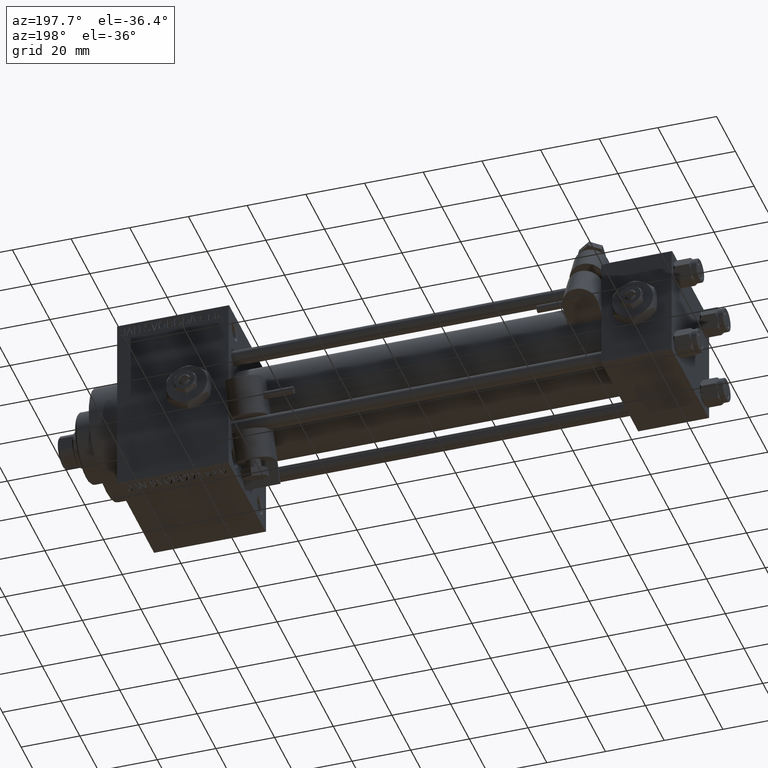
[diagram: clean part render]
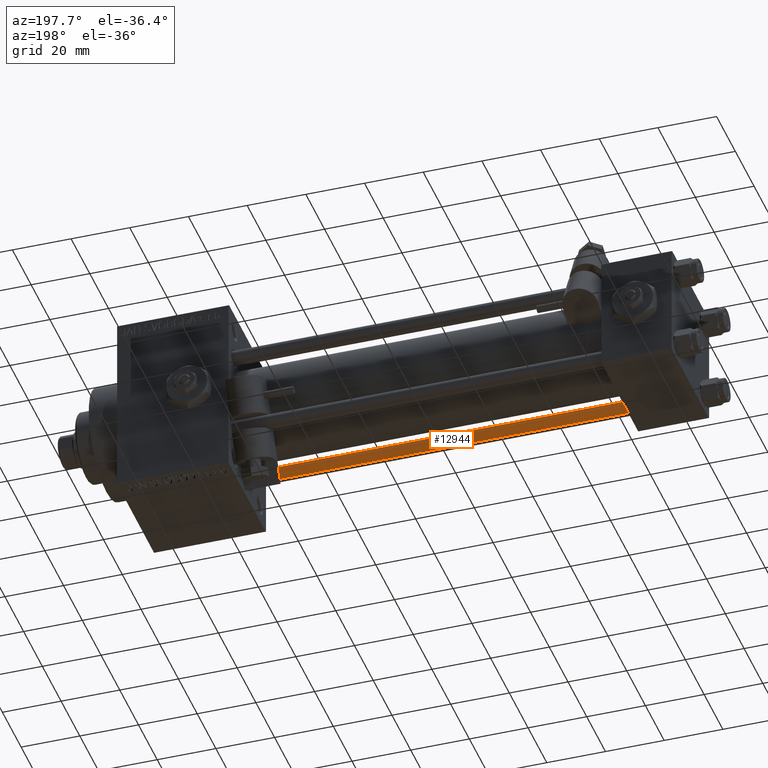
[diagram: same view with one face highlighted and labeled with its STEP entity id]
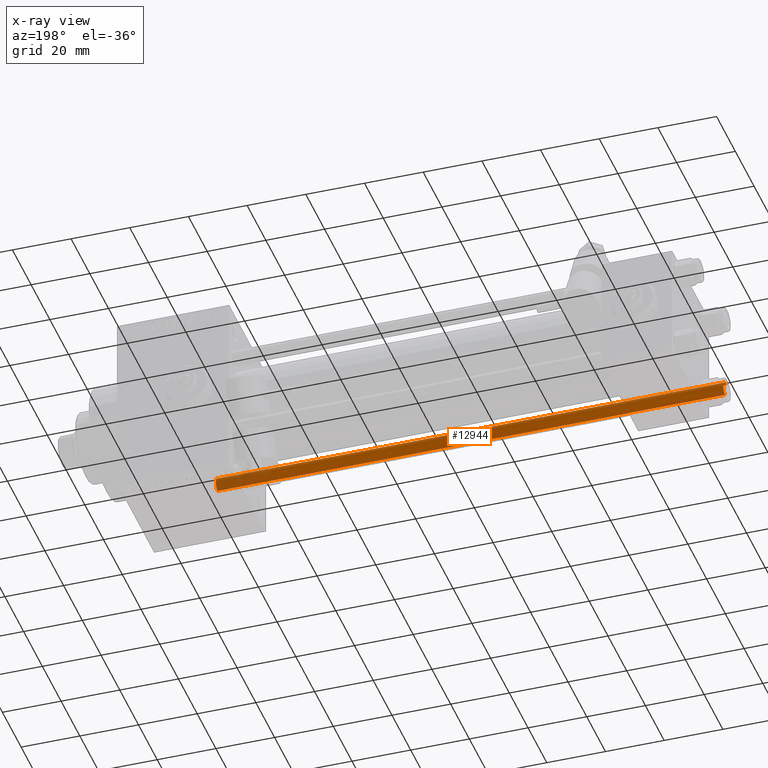
[diagram: x-ray of the same camera — body ghosted, the highlighted face saturated]
A machine part, auxiliary view. The second image highlights one B-rep face of the part: STEP entity #12944.
The next image is the same camera in x-ray: the body ghosted, the highlighted face saturated — about 8% of this face is hidden behind the body in this view.
In plain terms, the highlighted cylindrical surface (edge-blend (fillet) strip) has radius 2.5 mm, axis along (-1, 0, 0).
Its self-contained STEP definition (entity closure, byte-faithful):
#1652 = ORIENTED_EDGE ( 'NONE', *, *, #25671, .T. ) ;
#3290 = EDGE_CURVE ( 'NONE', #16460, #25687, #38782, .T. ) ;
#4102 = CARTESIAN_POINT ( 'NONE',  ( 2.500000000000000000, 3.061616997868383141E-16, 173.5000000000000000 ) ) ;
#4316 = ORIENTED_EDGE ( 'NONE', *, *, #27891, .F. ) ;
#4434 = DIRECTION ( 'NONE',  ( -1.000000000000000000, 0.000000000000000000, 0.000000000000000000 ) ) ;
#6632 = AXIS2_PLACEMENT_3D ( 'NONE', #9493, #24949, #4434 ) ;
#8422 = CARTESIAN_POINT ( 'NONE',  ( 2.500000000000000000, 3.061616997868383141E-16, 0.5000000000000281997 ) ) ;
#8497 = FACE_OUTER_BOUND ( 'NONE', #13917, .T. ) ;
#9493 = CARTESIAN_POINT ( 'NONE',  ( 0.000000000000000000, 0.000000000000000000, 174.0000000000000000 ) ) ;
#10260 = DIRECTION ( 'NONE',  ( 1.000000000000000000, 0.000000000000000000, 0.000000000000000000 ) ) ;
#10900 = VERTEX_POINT ( 'NONE', #39251 ) ;
#11353 = EDGE_CURVE ( 'NONE', #12329, #10900, #34928, .T. ) ;
#12221 = CARTESIAN_POINT ( 'NONE',  ( -2.500000000000000000, 0.000000000000000000, 174.0000000000000000 ) ) ;
#12329 = VERTEX_POINT ( 'NONE', #4102 ) ;
#12944 = ADVANCED_FACE ( 'NONE', ( #8497 ), #24196, .T. ) ;
#13917 = EDGE_LOOP ( 'NONE', ( #4316, #36315, #1652, #41218 ) ) ;
#14058 = DIRECTION ( 'NONE',  ( 0.000000000000000000, 0.000000000000000000, -1.000000000000000000 ) ) ;
#15500 = DIRECTION ( 'NONE',  ( -0.000000000000000000, -0.000000000000000000, 1.000000000000000000 ) ) ;
#16014 = LINE ( 'NONE', #12221, #32861 ) ;
#16460 = VERTEX_POINT ( 'NONE', #48323 ) ;
#16898 = AXIS2_PLACEMENT_3D ( 'NONE', #45695, #15500, #30483 ) ;
#24196 = CYLINDRICAL_SURFACE ( 'NONE', #6632, 2.500000000000000000 ) ;
#24949 = DIRECTION ( 'NONE',  ( -0.000000000000000000, -0.000000000000000000, -1.000000000000000000 ) ) ;
#25671 = EDGE_CURVE ( 'NONE', #10900, #16460, #16014, .T. ) ;
#25687 = VERTEX_POINT ( 'NONE', #8422 ) ;
#25783 = LINE ( 'NONE', #30107, #29676 ) ;
#27679 = DIRECTION ( 'NONE',  ( -0.000000000000000000, -0.000000000000000000, -1.000000000000000000 ) ) ;
#27891 = EDGE_CURVE ( 'NONE', #12329, #25687, #25783, .T. ) ;
#29676 = VECTOR ( 'NONE', #33647, 1000.000000000000000 ) ;
#30107 = CARTESIAN_POINT ( 'NONE',  ( 2.500000000000000000, 3.061616997868383141E-16, 174.0000000000000000 ) ) ;
#30483 = DIRECTION ( 'NONE',  ( 1.000000000000000000, 0.000000000000000000, 0.000000000000000000 ) ) ;
#32861 = VECTOR ( 'NONE', #27679, 1000.000000000000000 ) ;
#33647 = DIRECTION ( 'NONE',  ( -0.000000000000000000, -0.000000000000000000, -1.000000000000000000 ) ) ;
#34928 = CIRCLE ( 'NONE', #40692, 2.500000000000000000 ) ;
#36315 = ORIENTED_EDGE ( 'NONE', *, *, #11353, .T. ) ;
#38782 = CIRCLE ( 'NONE', #16898, 2.500000000000000000 ) ;
#39251 = CARTESIAN_POINT ( 'NONE',  ( -2.500000000000000000, 0.000000000000000000, 173.5000000000000000 ) ) ;
#40692 = AXIS2_PLACEMENT_3D ( 'NONE', #48791, #14058, #10260 ) ;
#41218 = ORIENTED_EDGE ( 'NONE', *, *, #3290, .T. ) ;
#45695 = CARTESIAN_POINT ( 'NONE',  ( 0.000000000000000000, 0.000000000000000000, 0.5000000000000281997 ) ) ;
#48323 = CARTESIAN_POINT ( 'NONE',  ( -2.500000000000000000, 0.000000000000000000, 0.5000000000000281997 ) ) ;
#48791 = CARTESIAN_POINT ( 'NONE',  ( 0.000000000000000000, 0.000000000000000000, 173.5000000000000000 ) ) ;